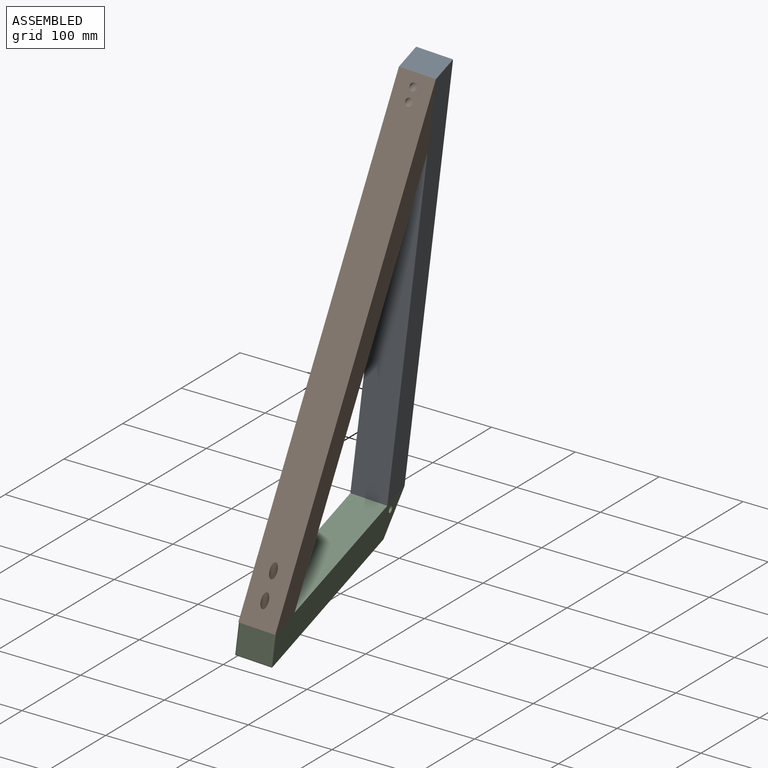
[diagram: assembled view]
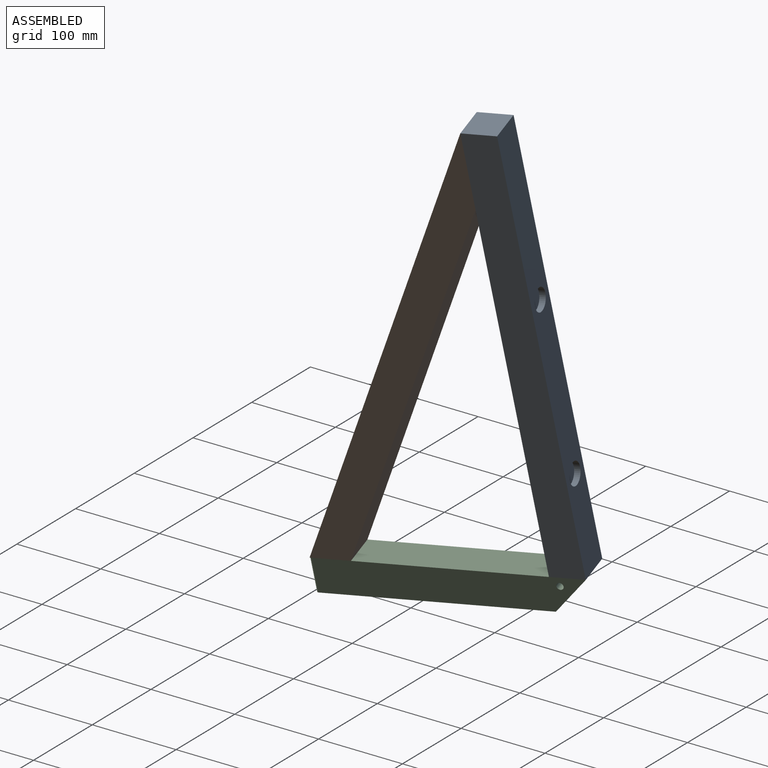
[diagram: assembled view, second angle]
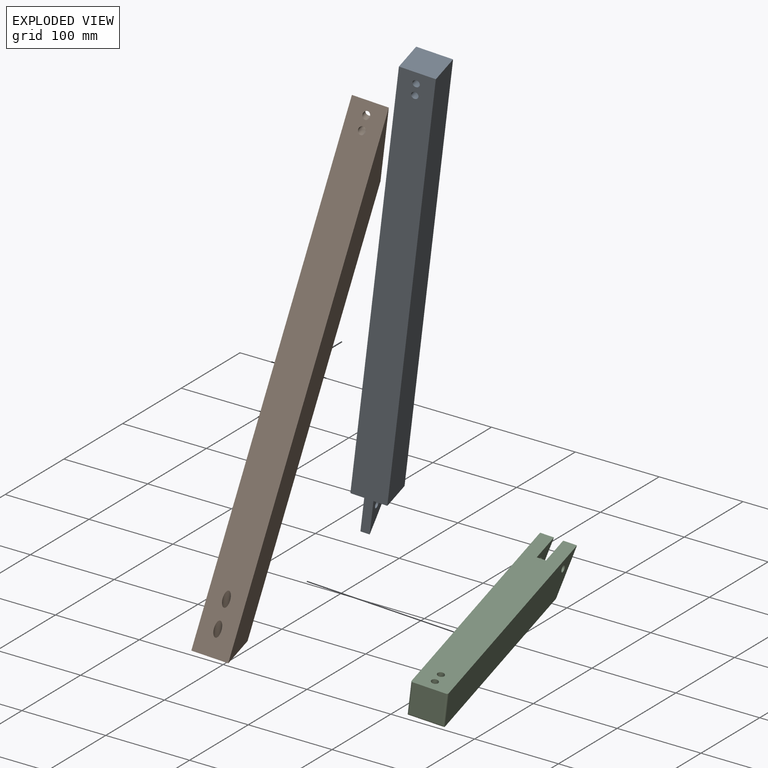
[diagram: exploded view]
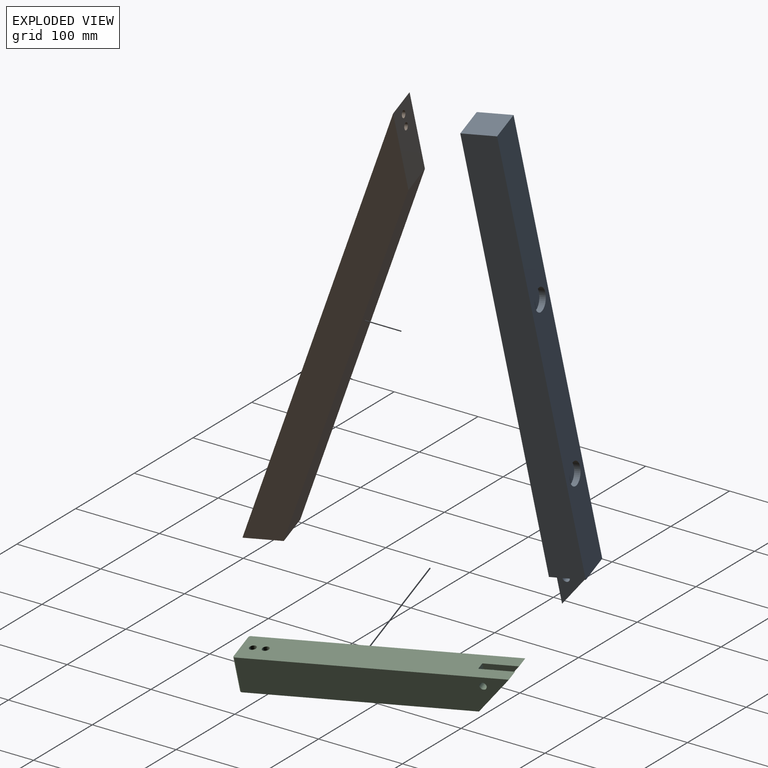
[diagram: exploded view, second angle]
ASSEMBLY  parts=3 mates=2
PART A: 19 faces, bbox 40x40x550 mm
  f0: plane 550x40mm, normal (0,-1,0), area 20699.5mm2, adj f2,f3,f4,f5,f6,f7,f8,f9
  f1: plane 510x40mm, normal (0,1,0), area 19378.6mm2, adj f2,f3,f4,f6,f8,f9,f11,f13
  f2: plane 510x40mm, normal (-1,0,0), area 20400mm2, adj f0,f1,f4,f8
  f3: plane 510x40mm, normal (1,0,0), area 20400mm2, adj f0,f1,f4,f6
  f4: plane 40x40mm, normal (0,0,1), area 1600mm2, adj f0,f1,f2,f3
  f5: plane 40x40mm, normal (1,0,0), area 749.7mm2, adj f0,f6,f9,f10
  f6: plane 40x15mm, normal (0,0,-1), area 600mm2, adj f0,f1,f3,f5
  f7: plane 40x40mm, normal (-1,0,0), area 749.7mm2, adj f0,f8,f9,f10
  f8: plane 40x15mm, normal (0,0,-1), area 600mm2, adj f0,f1,f2,f7
  f9: plane 40x40mm, normal (0,0.71,-0.71), area 565.7mm2, adj f0,f1,f5,f7
  f10: cylinder r=4mm len=10mm, axis (1,0,0), area 251.3mm2, adj f5,f7
  f11: cylinder r=12.75mm len=25.5mm, axis (0,1,0), area 560.8mm2, adj f1,f12
  f12: plane 25.5x25.5mm, normal (0,1,0), area 510.7mm2, adj f11
  f13: cylinder r=12.75mm len=25.5mm, axis (0,1,0), area 560.8mm2, adj f1,f14
  f14: plane 25.5x25.5mm, normal (0,1,0), area 510.7mm2, adj f13
  f15: cone r=0mm half-angle=59deg, axis (0,-1,0), area 58.6mm2, adj f16
  f16: cylinder r=4mm len=25mm, axis (0,-1,0), area 628.3mm2, adj f0,f15
  f17: cone r=0mm half-angle=59deg, axis (0,-1,0), area 58.6mm2, adj f18
  f18: cylinder r=4mm len=25mm, axis (0,-1,0), area 628.3mm2, adj f0,f17
PART B: 10 faces, bbox 43.3x263.3x513.3 mm
  f0: plane 513.3x263.3mm, normal (0,-0.89,0.45), area 22563.9mm2, adj f1,f3,f4,f5,f6,f7,f8,f9
  f1: plane 44.9x40mm, normal (0,0,-1), area 1695.4mm2, adj f0,f2,f4,f5,f6,f7
  f2: plane 421.93x215.1mm, normal (0,0.89,-0.45), area 18943.9mm2, adj f1,f3,f4,f5
  f3: plane 88.07x40mm, normal (0,1,0), area 3422.2mm2, adj f0,f2,f4,f5,f8,f9
  f4: plane 510x260mm, normal (1,0,0), area 20921mm2, adj f0,f1,f2,f3
  f5: plane 510x260mm, normal (-1,0,0), area 20921mm2, adj f0,f1,f2,f3
  f6: cylinder r=4mm len=60.81mm, axis (0,0,-1), area 1331.1mm2, adj f0,f1
  f7: cylinder r=4mm len=33.35mm, axis (0,0,-1), area 640.9mm2, adj f0,f1
  f8: cylinder r=4mm len=15.83mm, axis (0,1,0), area 345.9mm2, adj f0,f3
  f9: cylinder r=4mm len=8.69mm, axis (0,1,0), area 166.6mm2, adj f0,f3
PART C: 19 faces, bbox 40x300x40 mm
  f0: plane 38x36mm, normal (0,-1,0), area 1368mm2, adj f2,f16,f17,f18
  f1: plane 258x40mm, normal (0,0,-1), area 10320mm2, adj f3,f4,f7,f8,f9,f18
  f2: plane 300x40mm, normal (0,0,1), area 11497.8mm2, adj f0,f3,f4,f5,f6,f7,f8,f9
  f3: plane 298x40mm, normal (1,0,0), area 11069.7mm2, adj f1,f2,f9,f10,f16
  f4: plane 298x40mm, normal (-1,0,0), area 11069.7mm2, adj f1,f2,f8,f11,f17
  f5: plane 40x40mm, normal (1,0,0), area 749.7mm2, adj f2,f7,f8,f11
  f6: plane 40x40mm, normal (-1,0,0), area 749.7mm2, adj f2,f7,f9,f10
  f7: plane 40x10mm, normal (0,1,0), area 400mm2, adj f1,f2,f5,f6
  f8: plane 40x40mm, normal (0,0.71,-0.71), area 848.5mm2, adj f1,f2,f4,f5
  f9: plane 40x40mm, normal (0,0.71,-0.71), area 848.5mm2, adj f1,f2,f3,f6
  f10: cylinder r=4mm len=15mm, axis (1,0,0), area 377mm2, adj f3,f6
  f11: cylinder r=4mm len=15mm, axis (1,0,0), area 377mm2, adj f4,f5
  f12: cone r=0mm half-angle=59deg, axis (0,0,1), area 58.6mm2, adj f13
  f13: cylinder r=4mm len=25mm, axis (0,0,1), area 628.3mm2, adj f2,f12
  f14: cone r=0mm half-angle=59deg, axis (0,0,1), area 58.6mm2, adj f15
  f15: cylinder r=4mm len=25mm, axis (0,0,1), area 628.3mm2, adj f2,f14
  f16: cylinder r=2mm len=40mm, axis (0,0,1), area 123.4mm2, adj f0,f2,f3,f18
  f17: cylinder r=2mm len=40mm, axis (0,0,-1), area 123.4mm2, adj f0,f2,f4,f18
  f18: cylinder r=2mm len=40mm, axis (1,0,0), area 121.1mm2, adj f0,f1,f16,f17
PLACE A rot(axis=(0.38,0.62,0.68),15.3deg) t=(1.44,137.65,-163.44)mm
PLACE B rot(axis=(0.38,0.62,0.68),15.3deg) t=(59.68,-159.31,-158.96)mm
PLACE C rot(axis=(0.38,0.62,0.68),15.3deg) t=(52.74,-155.88,-198.2)mm
MATE fastened B.f8 <-> A.f15  axis (-0.17,0.98,0.12) through (118.49,57.38,341.92)mm
MATE fastened C.f6 <-> A.f5  axis (-0.97,-0.19,0.16) through (34.8,114.2,-144.44)mm
